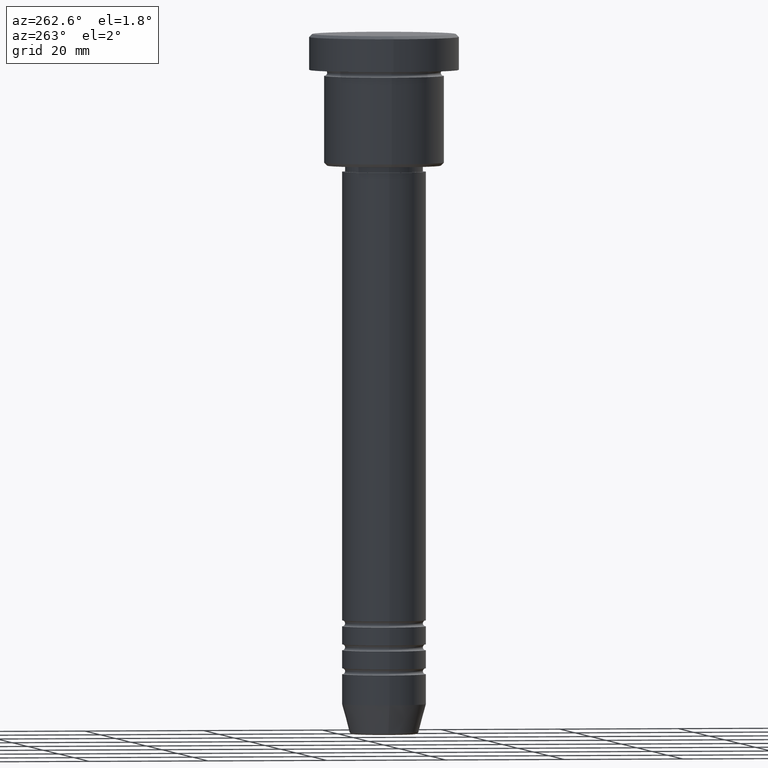
[diagram: clean part render]
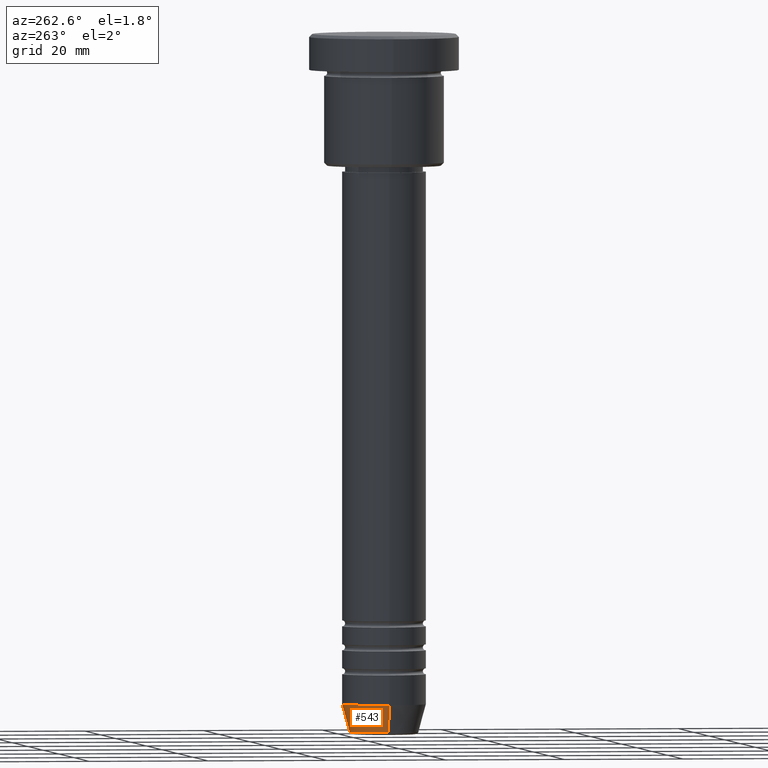
[diagram: same view with one face highlighted and labeled with its STEP entity id]
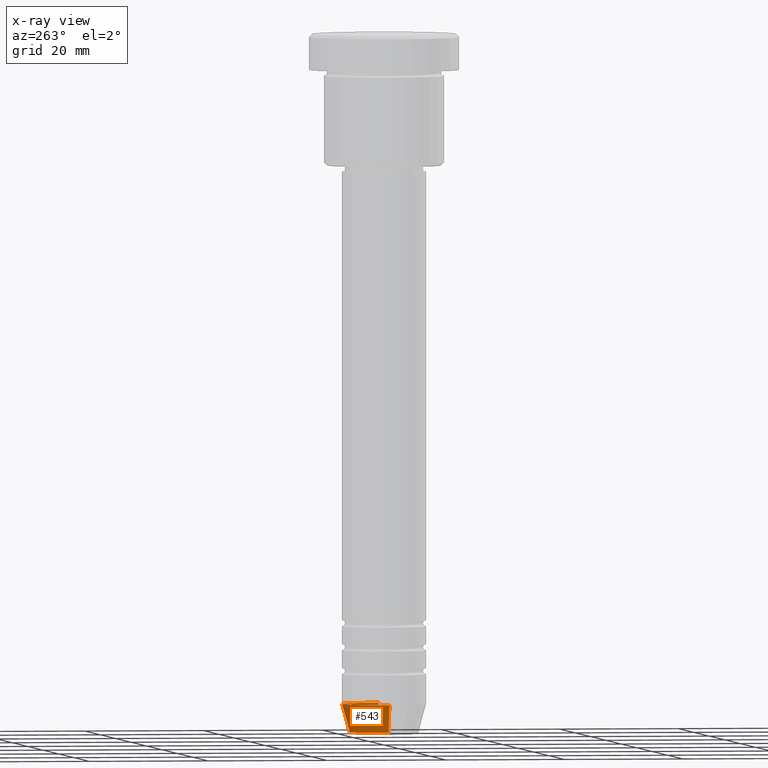
[diagram: x-ray of the same camera — body ghosted, the highlighted face saturated]
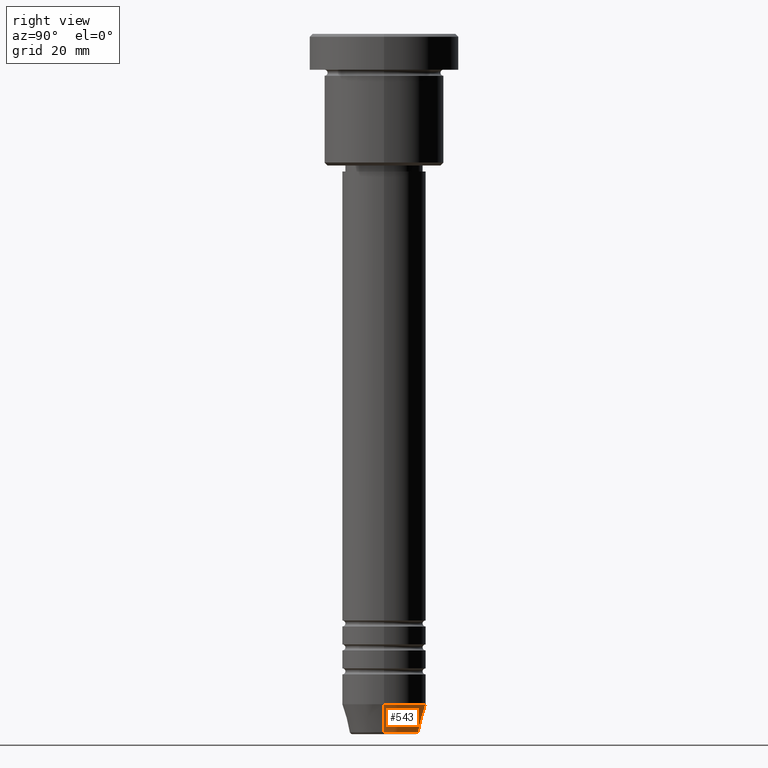
[diagram: same view with one face highlighted and labeled with its STEP entity id]
A machine part, auxiliary view. The second image highlights one B-rep face of the part: STEP entity #543.
The next image is the same camera in x-ray: the body ghosted, the highlighted face saturated — about 2% of this face is hidden behind the body in this view.
A second angle (right view) of the same face is appended — the face is thin or edge-on in the first view.
In plain terms, the highlighted conical surface has half-angle 15 deg.
Its self-contained STEP definition (entity closure, byte-faithful):
#51 = CARTESIAN_POINT ( 'NONE',  ( 7.000000000000000000, 0.000000000000000000, -112.0000000000000000 ) ) ;
#78 = AXIS2_PLACEMENT_3D ( 'NONE', #1138, #669, #570 ) ;
#92 = CONICAL_SURFACE ( 'NONE', #446, 7.000000000000000000, 0.2617993877991500740 ) ;
#185 = VECTOR ( 'NONE', #288, 1000.000000000000000 ) ;
#206 = CARTESIAN_POINT ( 'NONE',  ( -5.759553456999443988, 7.812973149831957689E-16, -116.6294095225512422 ) ) ;
#217 = DIRECTION ( 'NONE',  ( -0.000000000000000000, -0.000000000000000000, 1.000000000000000000 ) ) ;
#288 = DIRECTION ( 'NONE',  ( -0.2588190451025213501, 3.169619151431772337E-17, 0.9659258262890680902 ) ) ;
#300 = CARTESIAN_POINT ( 'NONE',  ( -7.000000000000000000, 8.572527594031473190E-16, -112.0000000000000000 ) ) ;
#322 = VECTOR ( 'NONE', #412, 1000.000000000000000 ) ;
#348 = ORIENTED_EDGE ( 'NONE', *, *, #611, .T. ) ;
#363 = CIRCLE ( 'NONE', #1181, 5.759553456999443988 ) ;
#382 = CARTESIAN_POINT ( 'NONE',  ( 7.000000000000000000, 0.000000000000000000, -112.0000000000000000 ) ) ;
#412 = DIRECTION ( 'NONE',  ( 0.2588190451025213501, 0.000000000000000000, 0.9659258262890680902 ) ) ;
#446 = AXIS2_PLACEMENT_3D ( 'NONE', #923, #558, #460 ) ;
#460 = DIRECTION ( 'NONE',  ( 1.000000000000000000, 0.000000000000000000, 0.000000000000000000 ) ) ;
#498 = VERTEX_POINT ( 'NONE', #1012 ) ;
#531 = VERTEX_POINT ( 'NONE', #206 ) ;
#543 = ADVANCED_FACE ( 'NONE', ( #839 ), #92, .T. ) ;
#558 = DIRECTION ( 'NONE',  ( -0.000000000000000000, -0.000000000000000000, 1.000000000000000000 ) ) ;
#563 = CARTESIAN_POINT ( 'NONE',  ( 5.759553456999443988, 0.000000000000000000, -116.6294095225512422 ) ) ;
#568 = DIRECTION ( 'NONE',  ( 1.000000000000000000, 0.000000000000000000, 0.000000000000000000 ) ) ;
#570 = DIRECTION ( 'NONE',  ( 1.000000000000000000, 0.000000000000000000, 0.000000000000000000 ) ) ;
#611 = EDGE_CURVE ( 'NONE', #531, #498, #1115, .T. ) ;
#669 = DIRECTION ( 'NONE',  ( -0.000000000000000000, -0.000000000000000000, 1.000000000000000000 ) ) ;
#721 = EDGE_CURVE ( 'NONE', #933, #498, #1004, .T. ) ;
#839 = FACE_OUTER_BOUND ( 'NONE', #920, .T. ) ;
#861 = ORIENTED_EDGE ( 'NONE', *, *, #1026, .T. ) ;
#920 = EDGE_LOOP ( 'NONE', ( #861, #348, #1052, #1087 ) ) ;
#923 = CARTESIAN_POINT ( 'NONE',  ( 0.000000000000000000, 0.000000000000000000, -112.0000000000000000 ) ) ;
#933 = VERTEX_POINT ( 'NONE', #382 ) ;
#979 = VERTEX_POINT ( 'NONE', #563 ) ;
#1004 = CIRCLE ( 'NONE', #78, 7.000000000000000000 ) ;
#1012 = CARTESIAN_POINT ( 'NONE',  ( -7.000000000000000000, 8.572527594031473190E-16, -112.0000000000000000 ) ) ;
#1026 = EDGE_CURVE ( 'NONE', #979, #531, #363, .T. ) ;
#1028 = CARTESIAN_POINT ( 'NONE',  ( 0.000000000000000000, 0.000000000000000000, -116.6294095225512422 ) ) ;
#1040 = LINE ( 'NONE', #51, #322 ) ;
#1052 = ORIENTED_EDGE ( 'NONE', *, *, #721, .F. ) ;
#1081 = EDGE_CURVE ( 'NONE', #979, #933, #1040, .T. ) ;
#1087 = ORIENTED_EDGE ( 'NONE', *, *, #1081, .F. ) ;
#1115 = LINE ( 'NONE', #300, #185 ) ;
#1138 = CARTESIAN_POINT ( 'NONE',  ( 0.000000000000000000, 0.000000000000000000, -112.0000000000000000 ) ) ;
#1181 = AXIS2_PLACEMENT_3D ( 'NONE', #1028, #217, #568 ) ;